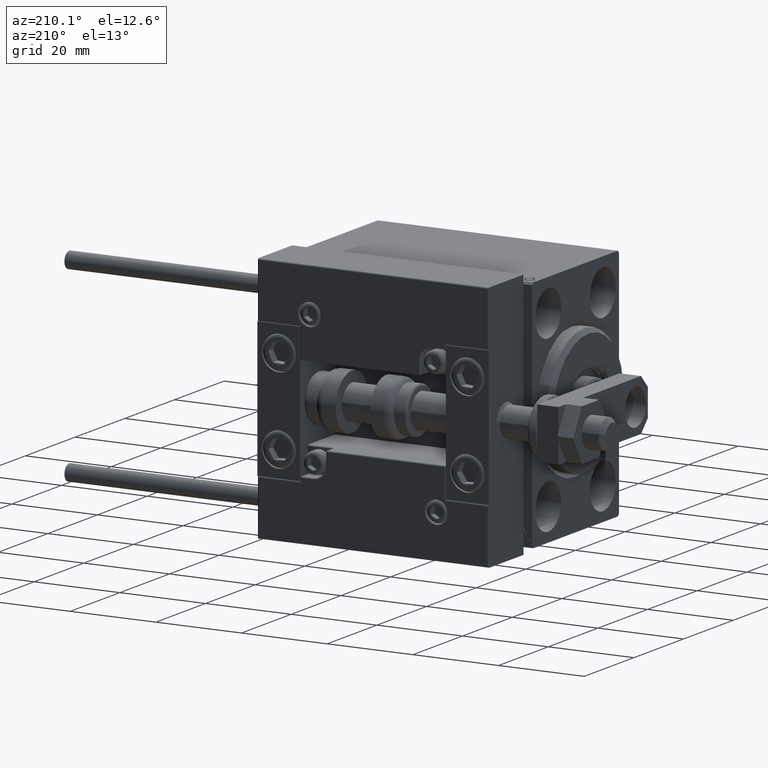
[diagram: clean part render]
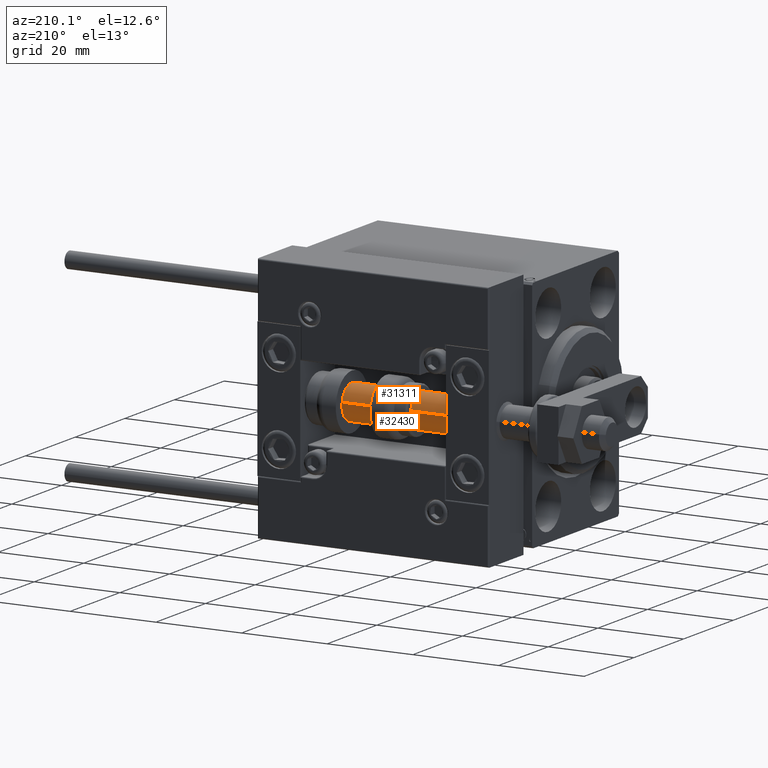
[diagram: same view with one multi-face feature highlighted, each face labeled with its STEP entity id]
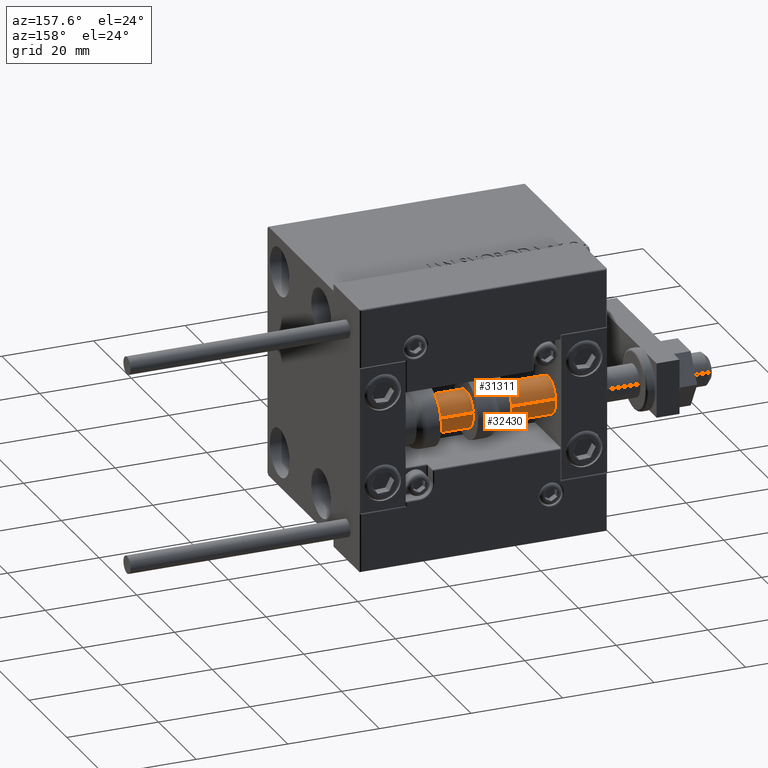
[diagram: same view with one multi-face feature highlighted, each face labeled with its STEP entity id]
A machine part, auxiliary view. The highlighted faces form ONE feature: a constant-radius fillet chain: 2 tangent blend faces with common blend radius 4 mm. The faces share edges in the B-rep.
A second angle (auxiliary view) of the same feature is appended — it is thin or edge-on in the first view.
Their STEP definitions:
[1] entity #31311 (Cylinder):
#1642 = FACE_OUTER_BOUND ( 'NONE', #20243, .T. ) ;
#2865 = CARTESIAN_POINT ( 'NONE',  ( 4.000000000000000000, 4.898587196589412829E-16, 2.000000000000036415 ) ) ;
#3251 = VERTEX_POINT ( 'NONE', #29089 ) ;
#3303 = AXIS2_PLACEMENT_3D ( 'NONE', #48505, #28925, #6205 ) ;
#3525 = CARTESIAN_POINT ( 'NONE',  ( 0.000000000000000000, 0.000000000000000000, 56.00000000000000000 ) ) ;
#6205 = DIRECTION ( 'NONE',  ( -1.000000000000000000, 0.000000000000000000, 0.000000000000000000 ) ) ;
#6928 = EDGE_CURVE ( 'NONE', #3251, #8129, #48466, .T. ) ;
#8129 = VERTEX_POINT ( 'NONE', #10840 ) ;
#9245 = DIRECTION ( 'NONE',  ( -0.000000000000000000, -0.000000000000000000, -1.000000000000000000 ) ) ;
#9818 = CARTESIAN_POINT ( 'NONE',  ( 0.000000000000000000, 0.000000000000000000, 2.000000000000036415 ) ) ;
#10840 = CARTESIAN_POINT ( 'NONE',  ( -4.000000000000000000, 0.000000000000000000, 56.00000000000000000 ) ) ;
#11800 = LINE ( 'NONE', #50015, #42933 ) ;
#13034 = VERTEX_POINT ( 'NONE', #2865 ) ;
#14168 = DIRECTION ( 'NONE',  ( 1.000000000000000000, 0.000000000000000000, 0.000000000000000000 ) ) ;
#16013 = DIRECTION ( 'NONE',  ( 0.000000000000000000, 0.000000000000000000, 1.000000000000000000 ) ) ;
#16225 = EDGE_CURVE ( 'NONE', #13034, #31928, #22795, .T. ) ;
#17253 = CARTESIAN_POINT ( 'NONE',  ( -4.000000000000000000, 0.000000000000000000, 2.000000000000036415 ) ) ;
#18172 = LINE ( 'NONE', #29895, #28590 ) ;
#19416 = EDGE_CURVE ( 'NONE', #8129, #31928, #11800, .T. ) ;
#20243 = EDGE_LOOP ( 'NONE', ( #47514, #50229, #27046, #43689 ) ) ;
#22795 = CIRCLE ( 'NONE', #31740, 4.000000000000000000 ) ;
#23172 = DIRECTION ( 'NONE',  ( 1.000000000000000000, 0.000000000000000000, 0.000000000000000000 ) ) ;
#27046 = ORIENTED_EDGE ( 'NONE', *, *, #16225, .T. ) ;
#28590 = VECTOR ( 'NONE', #9245, 1000.000000000000000 ) ;
#28925 = DIRECTION ( 'NONE',  ( -0.000000000000000000, -0.000000000000000000, -1.000000000000000000 ) ) ;
#29089 = CARTESIAN_POINT ( 'NONE',  ( 4.000000000000000000, 4.898587196589412829E-16, 56.00000000000000000 ) ) ;
#29895 = CARTESIAN_POINT ( 'NONE',  ( 4.000000000000000000, 4.898587196589412829E-16, 56.00000000000000000 ) ) ;
#31311 = ADVANCED_FACE ( 'NONE', ( #1642 ), #49261, .T. ) ;
#31740 = AXIS2_PLACEMENT_3D ( 'NONE', #9818, #41660, #14168 ) ;
#31928 = VERTEX_POINT ( 'NONE', #17253 ) ;
#35255 = DIRECTION ( 'NONE',  ( -0.000000000000000000, -0.000000000000000000, -1.000000000000000000 ) ) ;
#36014 = EDGE_CURVE ( 'NONE', #3251, #13034, #18172, .T. ) ;
#41660 = DIRECTION ( 'NONE',  ( -0.000000000000000000, -0.000000000000000000, 1.000000000000000000 ) ) ;
#42933 = VECTOR ( 'NONE', #35255, 1000.000000000000000 ) ;
#43689 = ORIENTED_EDGE ( 'NONE', *, *, #19416, .F. ) ;
#44395 = AXIS2_PLACEMENT_3D ( 'NONE', #3525, #16013, #23172 ) ;
#47514 = ORIENTED_EDGE ( 'NONE', *, *, #6928, .F. ) ;
#48466 = CIRCLE ( 'NONE', #44395, 4.000000000000000000 ) ;
#48505 = CARTESIAN_POINT ( 'NONE',  ( 0.000000000000000000, 0.000000000000000000, 56.00000000000000000 ) ) ;
#49261 = CYLINDRICAL_SURFACE ( 'NONE', #3303, 4.000000000000000000 ) ;
#50015 = CARTESIAN_POINT ( 'NONE',  ( -4.000000000000000000, 0.000000000000000000, 56.00000000000000000 ) ) ;
#50229 = ORIENTED_EDGE ( 'NONE', *, *, #36014, .T. ) ;
[2] entity #32430 (Cylinder):
#2605 = ORIENTED_EDGE ( 'NONE', *, *, #36014, .F. ) ;
#2677 = ORIENTED_EDGE ( 'NONE', *, *, #39676, .T. ) ;
#2865 = CARTESIAN_POINT ( 'NONE',  ( 4.000000000000000000, 4.898587196589412829E-16, 2.000000000000036415 ) ) ;
#3251 = VERTEX_POINT ( 'NONE', #29089 ) ;
#3666 = EDGE_LOOP ( 'NONE', ( #2605, #18444, #17043, #2677 ) ) ;
#5750 = CARTESIAN_POINT ( 'NONE',  ( 0.000000000000000000, 0.000000000000000000, 56.00000000000000000 ) ) ;
#6586 = DIRECTION ( 'NONE',  ( -0.000000000000000000, -0.000000000000000000, 1.000000000000000000 ) ) ;
#8129 = VERTEX_POINT ( 'NONE', #10840 ) ;
#8980 = CARTESIAN_POINT ( 'NONE',  ( 0.000000000000000000, 0.000000000000000000, 56.00000000000000000 ) ) ;
#9245 = DIRECTION ( 'NONE',  ( -0.000000000000000000, -0.000000000000000000, -1.000000000000000000 ) ) ;
#10840 = CARTESIAN_POINT ( 'NONE',  ( -4.000000000000000000, 0.000000000000000000, 56.00000000000000000 ) ) ;
#11511 = CIRCLE ( 'NONE', #23770, 4.000000000000000000 ) ;
#11800 = LINE ( 'NONE', #50015, #42933 ) ;
#13034 = VERTEX_POINT ( 'NONE', #2865 ) ;
#14011 = AXIS2_PLACEMENT_3D ( 'NONE', #30821, #6586, #15018 ) ;
#15018 = DIRECTION ( 'NONE',  ( 1.000000000000000000, 0.000000000000000000, 0.000000000000000000 ) ) ;
#15543 = AXIS2_PLACEMENT_3D ( 'NONE', #8980, #27641, #28627 ) ;
#17043 = ORIENTED_EDGE ( 'NONE', *, *, #19416, .T. ) ;
#17253 = CARTESIAN_POINT ( 'NONE',  ( -4.000000000000000000, 0.000000000000000000, 2.000000000000036415 ) ) ;
#18172 = LINE ( 'NONE', #29895, #28590 ) ;
#18444 = ORIENTED_EDGE ( 'NONE', *, *, #37190, .F. ) ;
#19416 = EDGE_CURVE ( 'NONE', #8129, #31928, #11800, .T. ) ;
#23770 = AXIS2_PLACEMENT_3D ( 'NONE', #5750, #33040, #48557 ) ;
#23822 = FACE_OUTER_BOUND ( 'NONE', #3666, .T. ) ;
#27641 = DIRECTION ( 'NONE',  ( -0.000000000000000000, -0.000000000000000000, -1.000000000000000000 ) ) ;
#28590 = VECTOR ( 'NONE', #9245, 1000.000000000000000 ) ;
#28627 = DIRECTION ( 'NONE',  ( -1.000000000000000000, 0.000000000000000000, 0.000000000000000000 ) ) ;
#29089 = CARTESIAN_POINT ( 'NONE',  ( 4.000000000000000000, 4.898587196589412829E-16, 56.00000000000000000 ) ) ;
#29895 = CARTESIAN_POINT ( 'NONE',  ( 4.000000000000000000, 4.898587196589412829E-16, 56.00000000000000000 ) ) ;
#30821 = CARTESIAN_POINT ( 'NONE',  ( 0.000000000000000000, 0.000000000000000000, 2.000000000000036415 ) ) ;
#31928 = VERTEX_POINT ( 'NONE', #17253 ) ;
#32430 = ADVANCED_FACE ( 'NONE', ( #23822 ), #47723, .T. ) ;
#33040 = DIRECTION ( 'NONE',  ( 0.000000000000000000, 0.000000000000000000, 1.000000000000000000 ) ) ;
#35255 = DIRECTION ( 'NONE',  ( -0.000000000000000000, -0.000000000000000000, -1.000000000000000000 ) ) ;
#36014 = EDGE_CURVE ( 'NONE', #3251, #13034, #18172, .T. ) ;
#37190 = EDGE_CURVE ( 'NONE', #8129, #3251, #11511, .T. ) ;
#39275 = CIRCLE ( 'NONE', #14011, 4.000000000000000000 ) ;
#39676 = EDGE_CURVE ( 'NONE', #31928, #13034, #39275, .T. ) ;
#42933 = VECTOR ( 'NONE', #35255, 1000.000000000000000 ) ;
#47723 = CYLINDRICAL_SURFACE ( 'NONE', #15543, 4.000000000000000000 ) ;
#48557 = DIRECTION ( 'NONE',  ( 1.000000000000000000, 0.000000000000000000, 0.000000000000000000 ) ) ;
#50015 = CARTESIAN_POINT ( 'NONE',  ( -4.000000000000000000, 0.000000000000000000, 56.00000000000000000 ) ) ;